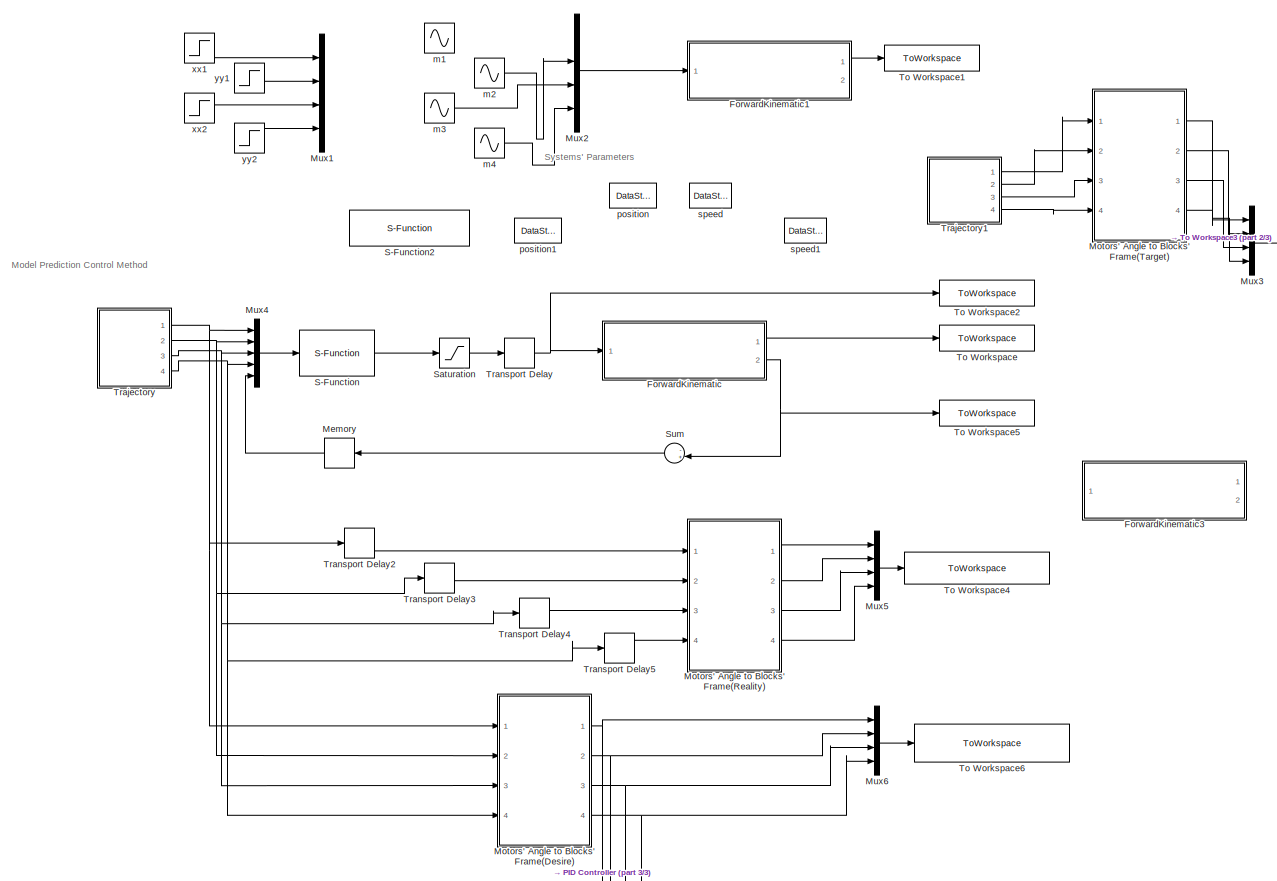
[diagram: root canvas - part 1/3, full width, middle band]
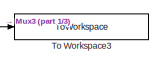
[diagram: root canvas - part 2/3, top right region]
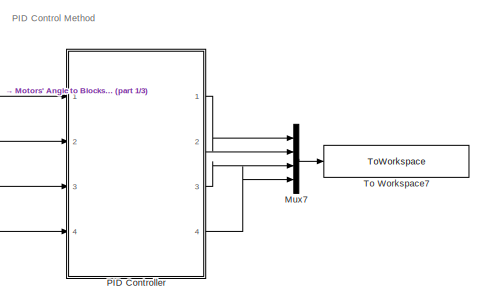
[diagram: root canvas - part 3/3, bottom center region]
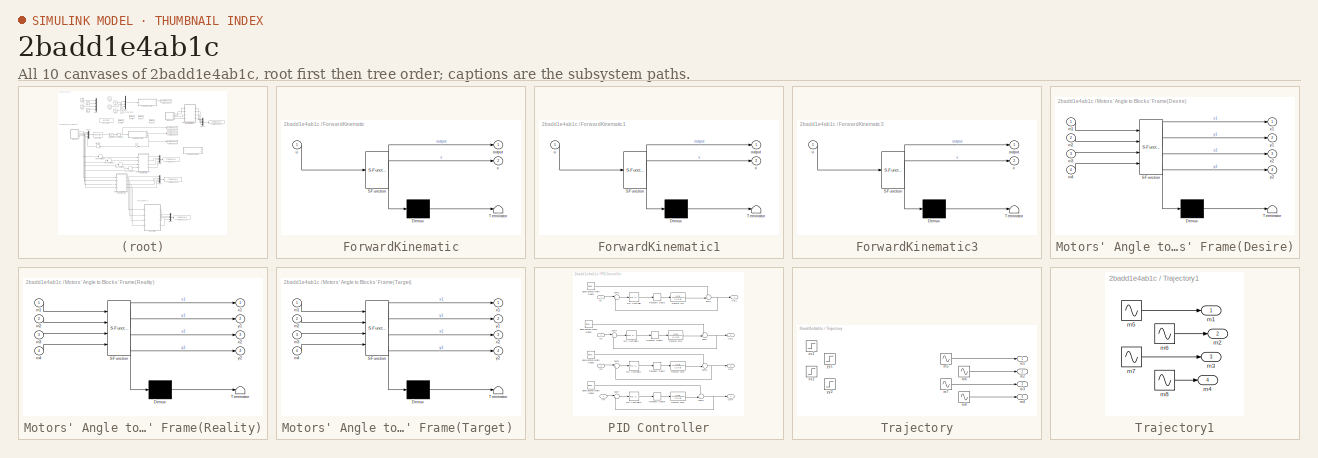
[diagram: thumbnail index - all 10 canvases of the model, root first then tree order]
MODEL slx_2badd1e4ab1c
KIND model
CONFIG AbsTol = auto
CONFIG FixedStep = 0.01
CONFIG MaxStep = auto
CONFIG MinStep = auto
CONFIG RelTol = 1e-3
CONFIG SampleTimeConstraint = Unconstrained
CONFIG Solver = ode4
CONFIG SolverMode = Auto
CONFIG SolverName = ode4
CONFIG StartTime = 0.0
CONFIG StopTime = 10
BLOCK [SubSystem] ForwardKinematic
  ErrorFcn = Stateflow.Translate.translate
  PermitHierarchicalResolution = ExplicitOnly
  Ports = [1, 2]
  RequestExecContextInheritance = off
  SFBlockType = MATLAB Function
  TreatAsAtomicUnit = on
BLOCK [Demux] ForwardKinematic/ Demux 
  Outputs = 1
  Ports = [1, 1]
BLOCK [S-Function] ForwardKinematic/ SFunction 
  EnableBusSupport = on
  FunctionName = sf_sfun
  PortCounts = [1 3]
  Ports = [1, 3]
  Tag = Stateflow S-Function MPC_Kalman 4
BLOCK [Terminator] ForwardKinematic/ Terminator 
BLOCK [Outport] ForwardKinematic/output
  IconDisplay = Port number
BLOCK [Inport] ForwardKinematic/u
  IconDisplay = Port number
BLOCK [Outport] ForwardKinematic/x
  IconDisplay = Port number
  Port = 2
BLOCK [SubSystem] ForwardKinematic1
  Commented = on
  ErrorFcn = Stateflow.Translate.translate
  PermitHierarchicalResolution = ExplicitOnly
  Ports = [1, 2]
  RequestExecContextInheritance = off
  SFBlockType = MATLAB Function
  TreatAsAtomicUnit = on
BLOCK [Demux] ForwardKinematic1/ Demux 
  Outputs = 1
  Ports = [1, 1]
BLOCK [S-Function] ForwardKinematic1/ SFunction 
  EnableBusSupport = on
  FunctionName = sf_sfun
  PortCounts = [1 3]
  Ports = [1, 3]
  Tag = Stateflow S-Function MPC_Kalman 1
BLOCK [Terminator] ForwardKinematic1/ Terminator 
BLOCK [Outport] ForwardKinematic1/output
  IconDisplay = Port number
BLOCK [Inport] ForwardKinematic1/u
  IconDisplay = Port number
BLOCK [Outport] ForwardKinematic1/x
  IconDisplay = Port number
  Port = 2
BLOCK [SubSystem] ForwardKinematic3
  Commented = on
  ErrorFcn = Stateflow.Translate.translate
  PermitHierarchicalResolution = ExplicitOnly
  Ports = [1, 2]
  RequestExecContextInheritance = off
  SFBlockType = MATLAB Function
  TreatAsAtomicUnit = on
BLOCK [Demux] ForwardKinematic3/ Demux 
  Outputs = 1
  Ports = [1, 1]
BLOCK [S-Function] ForwardKinematic3/ SFunction 
  EnableBusSupport = on
  FunctionName = sf_sfun
  PortCounts = [1 3]
  Ports = [1, 3]
  Tag = Stateflow S-Function MPC_Kalman 7
BLOCK [Terminator] ForwardKinematic3/ Terminator 
BLOCK [Outport] ForwardKinematic3/output
  IconDisplay = Port number
BLOCK [Inport] ForwardKinematic3/u
  IconDisplay = Port number
BLOCK [Outport] ForwardKinematic3/x
  IconDisplay = Port number
  Port = 2
BLOCK [Memory] Memory
  X0 = [0,0,0,0,0,0,0,0]
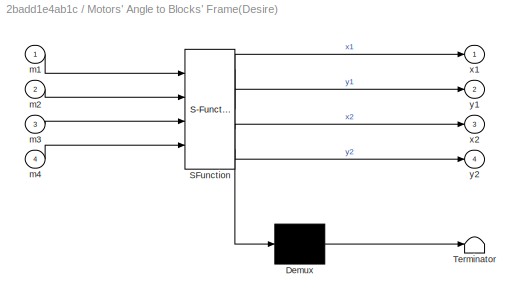
BLOCK [SubSystem] Motors' Angle to Blocks' Frame(Desire)
  ErrorFcn = Stateflow.Translate.translate
  PermitHierarchicalResolution = ExplicitOnly
  Ports = [4, 4]
  RequestExecContextInheritance = off
  SFBlockType = MATLAB Function
  TreatAsAtomicUnit = on
BLOCK [Demux] Motors' Angle to Blocks' Frame(Desire)/ Demux 
  Outputs = 1
  Ports = [1, 1]
BLOCK [S-Function] Motors' Angle to Blocks' Frame(Desire)/ SFunction 
  EnableBusSupport = on
  FunctionName = sf_sfun
  PortCounts = [4 5]
  Ports = [4, 5]
  Tag = Stateflow S-Function MPC_Kalman 3
BLOCK [Terminator] Motors' Angle to Blocks' Frame(Desire)/ Terminator 
BLOCK [Inport] Motors' Angle to Blocks' Frame(Desire)/m1
  IconDisplay = Port number
BLOCK [Inport] Motors' Angle to Blocks' Frame(Desire)/m2
  IconDisplay = Port number
  Port = 2
BLOCK [Inport] Motors' Angle to Blocks' Frame(Desire)/m3
  IconDisplay = Port number
  Port = 3
BLOCK [Inport] Motors' Angle to Blocks' Frame(Desire)/m4
  IconDisplay = Port number
  Port = 4
BLOCK [Outport] Motors' Angle to Blocks' Frame(Desire)/x1
  IconDisplay = Port number
BLOCK [Outport] Motors' Angle to Blocks' Frame(Desire)/x2
  IconDisplay = Port number
  Port = 3
BLOCK [Outport] Motors' Angle to Blocks' Frame(Desire)/y1
  IconDisplay = Port number
  Port = 2
BLOCK [Outport] Motors' Angle to Blocks' Frame(Desire)/y2
  IconDisplay = Port number
  Port = 4
BLOCK [SubSystem] Motors' Angle to Blocks' Frame(Reality)
  ErrorFcn = Stateflow.Translate.translate
  PermitHierarchicalResolution = ExplicitOnly
  Ports = [4, 4]
  RequestExecContextInheritance = off
  SFBlockType = MATLAB Function
  TreatAsAtomicUnit = on
BLOCK [Demux] Motors' Angle to Blocks' Frame(Reality)/ Demux 
  Outputs = 1
  Ports = [1, 1]
BLOCK [S-Function] Motors' Angle to Blocks' Frame(Reality)/ SFunction 
  EnableBusSupport = on
  FunctionName = sf_sfun
  PortCounts = [4 5]
  Ports = [4, 5]
  Tag = Stateflow S-Function MPC_Kalman 2
BLOCK [Terminator] Motors' Angle to Blocks' Frame(Reality)/ Terminator 
BLOCK [Inport] Motors' Angle to Blocks' Frame(Reality)/m1
  IconDisplay = Port number
BLOCK [Inport] Motors' Angle to Blocks' Frame(Reality)/m2
  IconDisplay = Port number
  Port = 2
BLOCK [Inport] Motors' Angle to Blocks' Frame(Reality)/m3
  IconDisplay = Port number
  Port = 3
BLOCK [Inport] Motors' Angle to Blocks' Frame(Reality)/m4
  IconDisplay = Port number
  Port = 4
BLOCK [Outport] Motors' Angle to Blocks' Frame(Reality)/x1
  IconDisplay = Port number
BLOCK [Outport] Motors' Angle to Blocks' Frame(Reality)/x2
  IconDisplay = Port number
  Port = 3
BLOCK [Outport] Motors' Angle to Blocks' Frame(Reality)/y1
  IconDisplay = Port number
  Port = 2
BLOCK [Outport] Motors' Angle to Blocks' Frame(Reality)/y2
  IconDisplay = Port number
  Port = 4
BLOCK [SubSystem] Motors' Angle to Blocks' Frame(Target) 
  Commented = on
  ErrorFcn = Stateflow.Translate.translate
  PermitHierarchicalResolution = ExplicitOnly
  Ports = [4, 4]
  RequestExecContextInheritance = off
  SFBlockType = MATLAB Function
  TreatAsAtomicUnit = on
BLOCK [Demux] Motors' Angle to Blocks' Frame(Target) / Demux 
  Outputs = 1
  Ports = [1, 1]
BLOCK [S-Function] Motors' Angle to Blocks' Frame(Target) / SFunction 
  EnableBusSupport = on
  FunctionName = sf_sfun
  PortCounts = [4 5]
  Ports = [4, 5]
  Tag = Stateflow S-Function MPC_Kalman 5
BLOCK [Terminator] Motors' Angle to Blocks' Frame(Target) / Terminator 
BLOCK [Inport] Motors' Angle to Blocks' Frame(Target) /m1
  IconDisplay = Port number
BLOCK [Inport] Motors' Angle to Blocks' Frame(Target) /m2
  IconDisplay = Port number
  Port = 2
BLOCK [Inport] Motors' Angle to Blocks' Frame(Target) /m3
  IconDisplay = Port number
  Port = 3
BLOCK [Inport] Motors' Angle to Blocks' Frame(Target) /m4
  IconDisplay = Port number
  Port = 4
BLOCK [Outport] Motors' Angle to Blocks' Frame(Target) /x1
  IconDisplay = Port number
BLOCK [Outport] Motors' Angle to Blocks' Frame(Target) /x2
  IconDisplay = Port number
  Port = 3
BLOCK [Outport] Motors' Angle to Blocks' Frame(Target) /y1
  IconDisplay = Port number
  Port = 2
BLOCK [Outport] Motors' Angle to Blocks' Frame(Target) /y2
  IconDisplay = Port number
  Port = 4
BLOCK [Mux] Mux1
  Commented = on
  DisplayOption = bar
  Ports = [4, 1]
BLOCK [Mux] Mux2
  Commented = on
  DisplayOption = bar
  Ports = [4, 1]
BLOCK [Mux] Mux3
  Commented = on
  DisplayOption = bar
  Ports = [4, 1]
BLOCK [Mux] Mux4
  DisplayOption = bar
  Inputs = 5
  Ports = [5, 1]
BLOCK [Mux] Mux5
  DisplayOption = bar
  Ports = [4, 1]
BLOCK [Mux] Mux6
  DisplayOption = bar
  Ports = [4, 1]
BLOCK [Mux] Mux7
  DisplayOption = bar
  Ports = [4, 1]
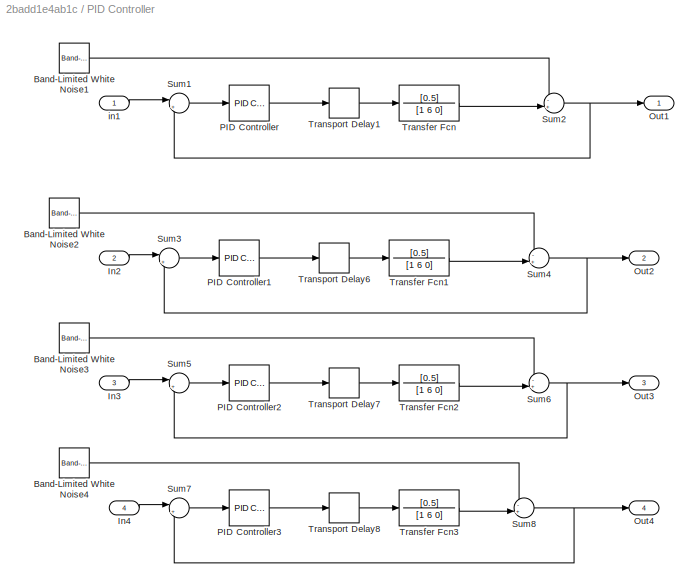
BLOCK [SubSystem] PID Controller
  Ports = [4, 4]
  RequestExecContextInheritance = off
BLOCK [Reference] PID Controller/Band-Limited White Noise1  REF=simulink/Sources/Band-Limited
White Noise
  Cov = [0.00001]
  Ports = [0, 1]
  SourceBlock = simulink/Sources/Band-Limited\nWhite Noise
  SourceType = Band-Limited White Noise.
  Ts = 0.01
  VectorParams1D = on
  seed = [23341]
BLOCK [Reference] PID Controller/Band-Limited White Noise2  REF=simulink/Sources/Band-Limited
White Noise
  Cov = [0.00001]
  Ports = [0, 1]
  SourceBlock = simulink/Sources/Band-Limited\nWhite Noise
  SourceType = Band-Limited White Noise.
  Ts = 0.01
  VectorParams1D = on
  seed = [23341]
BLOCK [Reference] PID Controller/Band-Limited White Noise3  REF=simulink/Sources/Band-Limited
White Noise
  Cov = [0.00001]
  Ports = [0, 1]
  SourceBlock = simulink/Sources/Band-Limited\nWhite Noise
  SourceType = Band-Limited White Noise.
  Ts = 0.01
  VectorParams1D = on
  seed = [23341]
BLOCK [Reference] PID Controller/Band-Limited White Noise4  REF=simulink/Sources/Band-Limited
White Noise
  Cov = [0.00001]
  Ports = [0, 1]
  SourceBlock = simulink/Sources/Band-Limited\nWhite Noise
  SourceType = Band-Limited White Noise.
  Ts = 0.01
  VectorParams1D = on
  seed = [23341]
BLOCK [Inport] PID Controller/In2
  IconDisplay = Port number
  Port = 2
BLOCK [Inport] PID Controller/In3
  IconDisplay = Port number
  Port = 3
BLOCK [Inport] PID Controller/In4
  IconDisplay = Port number
  Port = 4
BLOCK [Outport] PID Controller/Out1
  IconDisplay = Port number
BLOCK [Outport] PID Controller/Out2
  IconDisplay = Port number
  Port = 2
BLOCK [Outport] PID Controller/Out3
  IconDisplay = Port number
  Port = 3
BLOCK [Outport] PID Controller/Out4
  IconDisplay = Port number
  Port = 4
BLOCK [Reference] PID Controller/PID Controller  REF=simulink/Continuous/PID Controller
  AntiWindupMode = none
  Controller = PID
  ControllerParametersSource = internal
  D = 0
  DGainOutDataTypeStr = Inherit: Inherit via internal rule
  DOutDataTypeStr = Inherit: Inherit via internal rule
  DOutMax = []
  DOutMin = []
  DParamDataTypeStr = Inherit: Inherit via internal rule
  DParamMax = []
  DParamMin = []
  DProdOutDataTypeStr = Inherit: Inherit via internal rule
  DifferentiatorICPrevScaledInput = 0
  DifferentiatorOutDataTypeStr = Inherit: Inherit via internal rule
  DifferentiatorOutMax = []
  DifferentiatorOutMin = []
  ExternalReset = none
  FilterContinuousStateAttributes = ''
  FilterMethod = Forward Euler
  FilterOutDataTypeStr = Inherit: Inherit via internal rule
  FilterOutMax = []
  FilterOutMin = []
  FilterRTWStateStorageClass = Auto
  FilterStateMustResolveToSignalObject = off
  Form = Parallel
  I = 2
  IGainOutDataTypeStr = Inherit: Inherit via internal rule
  IOutDataTypeStr = Inherit: Inherit via internal rule
  IOutMax = []
  IOutMin = []
  IParamDataTypeStr = Inherit: Inherit via internal rule
  IParamMax = []
  IParamMin = []
  IProdOutDataTypeStr = Inherit: Inherit via internal rule
  IgnoreLimit = off
  InitialConditionForFilter = 0
  InitialConditionForIntegrator = 0
  InitialConditionSource = internal
  IntegratorContinuousStateAttributes = ''
  IntegratorMethod = Forward Euler
  IntegratorOutDataTypeStr = Inherit: Inherit via internal rule
  IntegratorOutMax = []
  IntegratorOutMin = []
  IntegratorRTWStateStorageClass = Auto
  IntegratorStateMustResolveToSignalObject = off
  Kb = 1
  KbOutDataTypeStr = Inherit: Inherit via internal rule
  KbOutMax = []
  KbOutMin = []
  KbParamDataTypeStr = Inherit: Inherit via internal rule
  KbParamMax = []
  KbParamMin = []
  Kt = 1
  KtOutDataTypeStr = Inherit: Inherit via internal rule
  KtOutMax = []
  KtOutMin = []
  KtParamDataTypeStr = Inherit: Inherit via internal rule
  KtParamMax = []
  KtParamMin = []
  LimitOutput = off
  LinearizeAsGain = on
  LockScale = off
  LowerSaturationLimit = -inf
  N = 100
  NGainOutDataTypeStr = Inherit: Inherit via internal rule
  NOutDataTypeStr = Inherit: Inherit via internal rule
  NOutMax = []
  NOutMin = []
  NParamDataTypeStr = Inherit: Inherit via internal rule
  NParamMax = []
  NParamMin = []
  NProdOutDataTypeStr = Inherit: Inherit via internal rule
  P = 60
  PGainOutDataTypeStr = Inherit: Inherit via internal rule
  POutDataTypeStr = Inherit: Inherit via internal rule
  POutMax = []
  POutMin = []
  PParamDataTypeStr = Inherit: Inherit via internal rule
  PParamMax = []
  PParamMin = []
  PProdOutDataTypeStr = Inherit: Inherit via internal rule
  Ports = [1, 1]
  RndMeth = Floor
  SampleTime = -1
  SaturateOnIntegerOverflow = off
  SaturationOutDataTypeStr = Inherit: Same as input
  SaturationOutMax = []
  SaturationOutMin = []
  SourceBlock = simulink/Continuous/PID Controller
  SourceType = PID 1dof
  SumAccumDataTypeStr = Inherit: Inherit via internal rule
  SumDAccumDataTypeStr = Inherit: Inherit via internal rule
  SumDOutDataTypeStr = Inherit: Inherit via internal rule
  SumDOutMax = []
  SumDOutMin = []
  SumI1AccumDataTypeStr = Inherit: Inherit via internal rule
  SumI1OutDataTypeStr = Inherit: Inherit via internal rule
  SumI1OutMax = []
  SumI1OutMin = []
  SumI2AccumDataTypeStr = Inherit: Inherit via internal rule
  SumI2OutDataTypeStr = Inherit: Inherit via internal rule
  SumI2OutMax = []
  SumI2OutMin = []
  SumI3AccumDataTypeStr = Inherit: Inherit via internal rule
  SumI3OutDataTypeStr = Inherit: Inherit via internal rule
  SumI3OutMax = []
  SumI3OutMin = []
  SumOutDataTypeStr = Inherit: Inherit via internal rule
  SumOutMax = []
  SumOutMin = []
  TimeDomain = Continuous-time
  TrackingMode = off
  UpperSaturationLimit = inf
  UseFilter = on
  ZeroCross = on
BLOCK [Reference] PID Controller/PID Controller1  REF=simulink/Continuous/PID Controller
  AntiWindupMode = none
  Controller = PID
  ControllerParametersSource = internal
  D = 0
  DGainOutDataTypeStr = Inherit: Inherit via internal rule
  DOutDataTypeStr = Inherit: Inherit via internal rule
  DOutMax = []
  DOutMin = []
  DParamDataTypeStr = Inherit: Inherit via internal rule
  DParamMax = []
  DParamMin = []
  DProdOutDataTypeStr = Inherit: Inherit via internal rule
  DifferentiatorICPrevScaledInput = 0
  DifferentiatorOutDataTypeStr = Inherit: Inherit via internal rule
  DifferentiatorOutMax = []
  DifferentiatorOutMin = []
  ExternalReset = none
  FilterContinuousStateAttributes = ''
  FilterMethod = Forward Euler
  FilterOutDataTypeStr = Inherit: Inherit via internal rule
  FilterOutMax = []
  FilterOutMin = []
  FilterRTWStateStorageClass = Auto
  FilterStateMustResolveToSignalObject = off
  Form = Parallel
  I = 2
  IGainOutDataTypeStr = Inherit: Inherit via internal rule
  IOutDataTypeStr = Inherit: Inherit via internal rule
  IOutMax = []
  IOutMin = []
  IParamDataTypeStr = Inherit: Inherit via internal rule
  IParamMax = []
  IParamMin = []
  IProdOutDataTypeStr = Inherit: Inherit via internal rule
  IgnoreLimit = off
  InitialConditionForFilter = 0
  InitialConditionForIntegrator = 0
  InitialConditionSource = internal
  IntegratorContinuousStateAttributes = ''
  IntegratorMethod = Forward Euler
  IntegratorOutDataTypeStr = Inherit: Inherit via internal rule
  IntegratorOutMax = []
  IntegratorOutMin = []
  IntegratorRTWStateStorageClass = Auto
  IntegratorStateMustResolveToSignalObject = off
  Kb = 1
  KbOutDataTypeStr = Inherit: Inherit via internal rule
  KbOutMax = []
  KbOutMin = []
  KbParamDataTypeStr = Inherit: Inherit via internal rule
  KbParamMax = []
  KbParamMin = []
  Kt = 1
  KtOutDataTypeStr = Inherit: Inherit via internal rule
  KtOutMax = []
  KtOutMin = []
  KtParamDataTypeStr = Inherit: Inherit via internal rule
  KtParamMax = []
  KtParamMin = []
  LimitOutput = off
  LinearizeAsGain = on
  LockScale = off
  LowerSaturationLimit = -inf
  N = 100
  NGainOutDataTypeStr = Inherit: Inherit via internal rule
  NOutDataTypeStr = Inherit: Inherit via internal rule
  NOutMax = []
  NOutMin = []
  NParamDataTypeStr = Inherit: Inherit via internal rule
  NParamMax = []
  NParamMin = []
  NProdOutDataTypeStr = Inherit: Inherit via internal rule
  P = 60
  PGainOutDataTypeStr = Inherit: Inherit via internal rule
  POutDataTypeStr = Inherit: Inherit via internal rule
  POutMax = []
  POutMin = []
  PParamDataTypeStr = Inherit: Inherit via internal rule
  PParamMax = []
  PParamMin = []
  PProdOutDataTypeStr = Inherit: Inherit via internal rule
  Ports = [1, 1]
  RndMeth = Floor
  SampleTime = -1
  SaturateOnIntegerOverflow = off
  SaturationOutDataTypeStr = Inherit: Same as input
  SaturationOutMax = []
  SaturationOutMin = []
  SourceBlock = simulink/Continuous/PID Controller
  SourceType = PID 1dof
  SumAccumDataTypeStr = Inherit: Inherit via internal rule
  SumDAccumDataTypeStr = Inherit: Inherit via internal rule
  SumDOutDataTypeStr = Inherit: Inherit via internal rule
  SumDOutMax = []
  SumDOutMin = []
  SumI1AccumDataTypeStr = Inherit: Inherit via internal rule
  SumI1OutDataTypeStr = Inherit: Inherit via internal rule
  SumI1OutMax = []
  SumI1OutMin = []
  SumI2AccumDataTypeStr = Inherit: Inherit via internal rule
  SumI2OutDataTypeStr = Inherit: Inherit via internal rule
  SumI2OutMax = []
  SumI2OutMin = []
  SumI3AccumDataTypeStr = Inherit: Inherit via internal rule
  SumI3OutDataTypeStr = Inherit: Inherit via internal rule
  SumI3OutMax = []
  SumI3OutMin = []
  SumOutDataTypeStr = Inherit: Inherit via internal rule
  SumOutMax = []
  SumOutMin = []
  TimeDomain = Continuous-time
  TrackingMode = off
  UpperSaturationLimit = inf
  UseFilter = on
  ZeroCross = on
BLOCK [Reference] PID Controller/PID Controller2  REF=simulink/Continuous/PID Controller
  AntiWindupMode = none
  Controller = PID
  ControllerParametersSource = internal
  D = 0
  DGainOutDataTypeStr = Inherit: Inherit via internal rule
  DOutDataTypeStr = Inherit: Inherit via internal rule
  DOutMax = []
  DOutMin = []
  DParamDataTypeStr = Inherit: Inherit via internal rule
  DParamMax = []
  DParamMin = []
  DProdOutDataTypeStr = Inherit: Inherit via internal rule
  DifferentiatorICPrevScaledInput = 0
  DifferentiatorOutDataTypeStr = Inherit: Inherit via internal rule
  DifferentiatorOutMax = []
  DifferentiatorOutMin = []
  ExternalReset = none
  FilterContinuousStateAttributes = ''
  FilterMethod = Forward Euler
  FilterOutDataTypeStr = Inherit: Inherit via internal rule
  FilterOutMax = []
  FilterOutMin = []
  FilterRTWStateStorageClass = Auto
  FilterStateMustResolveToSignalObject = off
  Form = Parallel
  I = 2
  IGainOutDataTypeStr = Inherit: Inherit via internal rule
  IOutDataTypeStr = Inherit: Inherit via internal rule
  IOutMax = []
  IOutMin = []
  IParamDataTypeStr = Inherit: Inherit via internal rule
  IParamMax = []
  IParamMin = []
  IProdOutDataTypeStr = Inherit: Inherit via internal rule
  IgnoreLimit = off
  InitialConditionForFilter = 0
  InitialConditionForIntegrator = 0
  InitialConditionSource = internal
  IntegratorContinuousStateAttributes = ''
  IntegratorMethod = Forward Euler
  IntegratorOutDataTypeStr = Inherit: Inherit via internal rule
  IntegratorOutMax = []
  IntegratorOutMin = []
  IntegratorRTWStateStorageClass = Auto
  IntegratorStateMustResolveToSignalObject = off
  Kb = 1
  KbOutDataTypeStr = Inherit: Inherit via internal rule
  KbOutMax = []
  KbOutMin = []
  KbParamDataTypeStr = Inherit: Inherit via internal rule
  KbParamMax = []
  KbParamMin = []
  Kt = 1
  KtOutDataTypeStr = Inherit: Inherit via internal rule
  KtOutMax = []
  KtOutMin = []
  KtParamDataTypeStr = Inherit: Inherit via internal rule
  KtParamMax = []
  KtParamMin = []
  LimitOutput = off
  LinearizeAsGain = on
  LockScale = off
  LowerSaturationLimit = -inf
  N = 100
  NGainOutDataTypeStr = Inherit: Inherit via internal rule
  NOutDataTypeStr = Inherit: Inherit via internal rule
  NOutMax = []
  NOutMin = []
  NParamDataTypeStr = Inherit: Inherit via internal rule
  NParamMax = []
  NParamMin = []
  NProdOutDataTypeStr = Inherit: Inherit via internal rule
  P = 60
  PGainOutDataTypeStr = Inherit: Inherit via internal rule
  POutDataTypeStr = Inherit: Inherit via internal rule
  POutMax = []
  POutMin = []
  PParamDataTypeStr = Inherit: Inherit via internal rule
  PParamMax = []
  PParamMin = []
  PProdOutDataTypeStr = Inherit: Inherit via internal rule
  Ports = [1, 1]
  RndMeth = Floor
  SampleTime = -1
  SaturateOnIntegerOverflow = off
  SaturationOutDataTypeStr = Inherit: Same as input
  SaturationOutMax = []
  SaturationOutMin = []
  SourceBlock = simulink/Continuous/PID Controller
  SourceType = PID 1dof
  SumAccumDataTypeStr = Inherit: Inherit via internal rule
  SumDAccumDataTypeStr = Inherit: Inherit via internal rule
  SumDOutDataTypeStr = Inherit: Inherit via internal rule
  SumDOutMax = []
  SumDOutMin = []
  SumI1AccumDataTypeStr = Inherit: Inherit via internal rule
  SumI1OutDataTypeStr = Inherit: Inherit via internal rule
  SumI1OutMax = []
  SumI1OutMin = []
  SumI2AccumDataTypeStr = Inherit: Inherit via internal rule
  SumI2OutDataTypeStr = Inherit: Inherit via internal rule
  SumI2OutMax = []
  SumI2OutMin = []
  SumI3AccumDataTypeStr = Inherit: Inherit via internal rule
  SumI3OutDataTypeStr = Inherit: Inherit via internal rule
  SumI3OutMax = []
  SumI3OutMin = []
  SumOutDataTypeStr = Inherit: Inherit via internal rule
  SumOutMax = []
  SumOutMin = []
  TimeDomain = Continuous-time
  TrackingMode = off
  UpperSaturationLimit = inf
  UseFilter = on
  ZeroCross = on
BLOCK [Reference] PID Controller/PID Controller3  REF=simulink/Continuous/PID Controller
  AntiWindupMode = none
  Controller = PID
  ControllerParametersSource = internal
  D = 0
  DGainOutDataTypeStr = Inherit: Inherit via internal rule
  DOutDataTypeStr = Inherit: Inherit via internal rule
  DOutMax = []
  DOutMin = []
  DParamDataTypeStr = Inherit: Inherit via internal rule
  DParamMax = []
  DParamMin = []
  DProdOutDataTypeStr = Inherit: Inherit via internal rule
  DifferentiatorICPrevScaledInput = 0
  DifferentiatorOutDataTypeStr = Inherit: Inherit via internal rule
  DifferentiatorOutMax = []
  DifferentiatorOutMin = []
  ExternalReset = none
  FilterContinuousStateAttributes = ''
  FilterMethod = Forward Euler
  FilterOutDataTypeStr = Inherit: Inherit via internal rule
  FilterOutMax = []
  FilterOutMin = []
  FilterRTWStateStorageClass = Auto
  FilterStateMustResolveToSignalObject = off
  Form = Parallel
  I = 2
  IGainOutDataTypeStr = Inherit: Inherit via internal rule
  IOutDataTypeStr = Inherit: Inherit via internal rule
  IOutMax = []
  IOutMin = []
  IParamDataTypeStr = Inherit: Inherit via internal rule
  IParamMax = []
  IParamMin = []
  IProdOutDataTypeStr = Inherit: Inherit via internal rule
  IgnoreLimit = off
  InitialConditionForFilter = 0
  InitialConditionForIntegrator = 0
  InitialConditionSource = internal
  IntegratorContinuousStateAttributes = ''
  IntegratorMethod = Forward Euler
  IntegratorOutDataTypeStr = Inherit: Inherit via internal rule
  IntegratorOutMax = []
  IntegratorOutMin = []
  IntegratorRTWStateStorageClass = Auto
  IntegratorStateMustResolveToSignalObject = off
  Kb = 1
  KbOutDataTypeStr = Inherit: Inherit via internal rule
  KbOutMax = []
  KbOutMin = []
  KbParamDataTypeStr = Inherit: Inherit via internal rule
  KbParamMax = []
  KbParamMin = []
  Kt = 1
  KtOutDataTypeStr = Inherit: Inherit via internal rule
  KtOutMax = []
  KtOutMin = []
  KtParamDataTypeStr = Inherit: Inherit via internal rule
  KtParamMax = []
  KtParamMin = []
  LimitOutput = off
  LinearizeAsGain = on
  LockScale = off
  LowerSaturationLimit = -inf
  N = 100
  NGainOutDataTypeStr = Inherit: Inherit via internal rule
  NOutDataTypeStr = Inherit: Inherit via internal rule
  NOutMax = []
  NOutMin = []
  NParamDataTypeStr = Inherit: Inherit via internal rule
  NParamMax = []
  NParamMin = []
  NProdOutDataTypeStr = Inherit: Inherit via internal rule
  P = 60
  PGainOutDataTypeStr = Inherit: Inherit via internal rule
  POutDataTypeStr = Inherit: Inherit via internal rule
  POutMax = []
  POutMin = []
  PParamDataTypeStr = Inherit: Inherit via internal rule
  PParamMax = []
  PParamMin = []
  PProdOutDataTypeStr = Inherit: Inherit via internal rule
  Ports = [1, 1]
  RndMeth = Floor
  SampleTime = -1
  SaturateOnIntegerOverflow = off
  SaturationOutDataTypeStr = Inherit: Same as input
  SaturationOutMax = []
  SaturationOutMin = []
  SourceBlock = simulink/Continuous/PID Controller
  SourceType = PID 1dof
  SumAccumDataTypeStr = Inherit: Inherit via internal rule
  SumDAccumDataTypeStr = Inherit: Inherit via internal rule
  SumDOutDataTypeStr = Inherit: Inherit via internal rule
  SumDOutMax = []
  SumDOutMin = []
  SumI1AccumDataTypeStr = Inherit: Inherit via internal rule
  SumI1OutDataTypeStr = Inherit: Inherit via internal rule
  SumI1OutMax = []
  SumI1OutMin = []
  SumI2AccumDataTypeStr = Inherit: Inherit via internal rule
  SumI2OutDataTypeStr = Inherit: Inherit via internal rule
  SumI2OutMax = []
  SumI2OutMin = []
  SumI3AccumDataTypeStr = Inherit: Inherit via internal rule
  SumI3OutDataTypeStr = Inherit: Inherit via internal rule
  SumI3OutMax = []
  SumI3OutMin = []
  SumOutDataTypeStr = Inherit: Inherit via internal rule
  SumOutMax = []
  SumOutMin = []
  TimeDomain = Continuous-time
  TrackingMode = off
  UpperSaturationLimit = inf
  UseFilter = on
  ZeroCross = on
BLOCK [Sum] PID Controller/Sum1
  IconShape = round
  InputSameDT = off
  Inputs = |+-
  OutDataTypeStr = Inherit: Inherit via internal rule
  Ports = [2, 1]
  SaturateOnIntegerOverflow = off
BLOCK [Sum] PID Controller/Sum2
  IconShape = round
  InputSameDT = off
  Inputs = -+|
  OutDataTypeStr = Inherit: Inherit via internal rule
  Ports = [2, 1]
  SaturateOnIntegerOverflow = off
BLOCK [Sum] PID Controller/Sum3
  IconShape = round
  InputSameDT = off
  Inputs = |+-
  OutDataTypeStr = Inherit: Inherit via internal rule
  Ports = [2, 1]
  SaturateOnIntegerOverflow = off
BLOCK [Sum] PID Controller/Sum4
  IconShape = round
  InputSameDT = off
  Inputs = -+|
  OutDataTypeStr = Inherit: Inherit via internal rule
  Ports = [2, 1]
  SaturateOnIntegerOverflow = off
BLOCK [Sum] PID Controller/Sum5
  IconShape = round
  InputSameDT = off
  Inputs = |+-
  OutDataTypeStr = Inherit: Inherit via internal rule
  Ports = [2, 1]
  SaturateOnIntegerOverflow = off
BLOCK [Sum] PID Controller/Sum6
  IconShape = round
  InputSameDT = off
  Inputs = -+|
  OutDataTypeStr = Inherit: Inherit via internal rule
  Ports = [2, 1]
  SaturateOnIntegerOverflow = off
BLOCK [Sum] PID Controller/Sum7
  IconShape = round
  InputSameDT = off
  Inputs = |+-
  OutDataTypeStr = Inherit: Inherit via internal rule
  Ports = [2, 1]
  SaturateOnIntegerOverflow = off
BLOCK [Sum] PID Controller/Sum8
  IconShape = round
  InputSameDT = off
  Inputs = -+|
  OutDataTypeStr = Inherit: Inherit via internal rule
  Ports = [2, 1]
  SaturateOnIntegerOverflow = off
BLOCK [TransferFcn] PID Controller/Transfer Fcn
  Denominator = [1 6 0]
  Numerator = [0.5]
BLOCK [TransferFcn] PID Controller/Transfer Fcn1
  Denominator = [1 6 0]
  Numerator = [0.5]
BLOCK [TransferFcn] PID Controller/Transfer Fcn2
  Denominator = [1 6 0]
  Numerator = [0.5]
BLOCK [TransferFcn] PID Controller/Transfer Fcn3
  Denominator = [1 6 0]
  Numerator = [0.5]
BLOCK [TransportDelay] PID Controller/Transport Delay1
  DelayTime = delay_time
  Ports = [1, 1]
BLOCK [TransportDelay] PID Controller/Transport Delay6
  DelayTime = delay_time
  Ports = [1, 1]
BLOCK [TransportDelay] PID Controller/Transport Delay7
  DelayTime = delay_time
  Ports = [1, 1]
BLOCK [TransportDelay] PID Controller/Transport Delay8
  DelayTime = delay_time
  Ports = [1, 1]
BLOCK [Inport] PID Controller/in1
  IconDisplay = Port number
BLOCK [S-Function] S-Function
  FunctionName = KFMPC
  Ports = [1, 1]
BLOCK [S-Function] S-Function2
  FunctionName = MPC_PredictionModel
  Ports = [1, 1]
BLOCK [Saturate] Saturation
  InputPortMap = u0
  LowerLimit = -1
  Ports = [1, 1]
  UpperLimit = 1
BLOCK [Sum] Sum
  IconShape = round
  InputSameDT = off
  Inputs = -+|
  OutDataTypeStr = Inherit: Inherit via internal rule
  Ports = [2, 1]
  SaturateOnIntegerOverflow = off
BLOCK [ToWorkspace] To Workspace
  FixptAsFi = on
  MaxDataPoints = inf
  Ports = [1]
  SampleTime = -1
  Save2DSignal = 3-D array (concatenate along third dimension)
  SaveFormat = Timeseries
  VariableName = BlocksMovement
BLOCK [ToWorkspace] To Workspace1
  Commented = on
  FixptAsFi = on
  MaxDataPoints = inf
  Ports = [1]
  SampleTime = -1
  Save2DSignal = 3-D array (concatenate along third dimension)
  SaveFormat = Timeseries
  VariableName = BlocksMovement1
BLOCK [ToWorkspace] To Workspace2
  FixptAsFi = on
  MaxDataPoints = inf
  Ports = [1]
  SampleTime = -1
  Save2DSignal = 3-D array (concatenate along third dimension)
  SaveFormat = Timeseries
  VariableName = ControlValue
BLOCK [ToWorkspace] To Workspace3
  Commented = on
  FixptAsFi = on
  MaxDataPoints = inf
  Ports = [1]
  SampleTime = -1
  Save2DSignal = 3-D array (concatenate along third dimension)
  SaveFormat = Timeseries
  VariableName = BlockMovementTarget
BLOCK [ToWorkspace] To Workspace4
  FixptAsFi = on
  MaxDataPoints = inf
  Ports = [1]
  SampleTime = -1
  Save2DSignal = 3-D array (concatenate along third dimension)
  SaveFormat = Timeseries
  VariableName = BlocksMovementReality
BLOCK [ToWorkspace] To Workspace5
  FixptAsFi = on
  MaxDataPoints = inf
  Ports = [1]
  SampleTime = -1
  Save2DSignal = 3-D array (concatenate along third dimension)
  SaveFormat = Timeseries
  VariableName = StateObserver
BLOCK [ToWorkspace] To Workspace6
  FixptAsFi = on
  MaxDataPoints = inf
  Ports = [1]
  SampleTime = -1
  Save2DSignal = 3-D array (concatenate along third dimension)
  SaveFormat = Timeseries
  VariableName = BlocksMovementDesire
BLOCK [ToWorkspace] To Workspace7
  FixptAsFi = on
  MaxDataPoints = inf
  Ports = [1]
  SampleTime = -1
  Save2DSignal = 3-D array (concatenate along third dimension)
  SaveFormat = Timeseries
  VariableName = BlocksMovementPID
BLOCK [SubSystem] Trajectory
  Ports = [0, 4]
  RequestExecContextInheritance = off
BLOCK [Outport] Trajectory/m1
  IconDisplay = Port number
BLOCK [Outport] Trajectory/m2
  IconDisplay = Port number
  Port = 2
BLOCK [Outport] Trajectory/m3
  IconDisplay = Port number
  Port = 3
BLOCK [Outport] Trajectory/m4
  IconDisplay = Port number
  Port = 4
BLOCK [Sin] Trajectory/m5
  Ports = [0, 1]
  SampleTime = 0
BLOCK [Sin] Trajectory/m6
  Frequency = 2
  Ports = [0, 1]
  SampleTime = 0
BLOCK [Sin] Trajectory/m7
  Phase = 3.14
  Ports = [0, 1]
  SampleTime = 0
BLOCK [Sin] Trajectory/m8
  Frequency = 2
  Phase = 3.14
  Ports = [0, 1]
  SampleTime = 0
BLOCK [Step] Trajectory/xx1
BLOCK [Step] Trajectory/xx2
  After = -1
BLOCK [Step] Trajectory/yy1
BLOCK [Step] Trajectory/yy2
  After = -1
BLOCK [SubSystem] Trajectory1
  Commented = on
  Ports = [0, 4]
  RequestExecContextInheritance = off
BLOCK [Outport] Trajectory1/m1
  IconDisplay = Port number
BLOCK [Outport] Trajectory1/m2
  IconDisplay = Port number
  Port = 2
BLOCK [Outport] Trajectory1/m3
  IconDisplay = Port number
  Port = 3
BLOCK [Outport] Trajectory1/m4
  IconDisplay = Port number
  Port = 4
BLOCK [Sin] Trajectory1/m5
  Ports = [0, 1]
  SampleTime = 0
BLOCK [Sin] Trajectory1/m6
  Frequency = 2
  Ports = [0, 1]
  SampleTime = 0
BLOCK [Sin] Trajectory1/m7
  Phase = 3.14
  Ports = [0, 1]
  SampleTime = 0
BLOCK [Sin] Trajectory1/m8
  Frequency = 2
  Phase = 3.14
  Ports = [0, 1]
  SampleTime = 0
BLOCK [TransportDelay] Transport Delay
  DelayTime = delay_time
  Ports = [1, 1]
BLOCK [TransportDelay] Transport Delay2
  DelayTime = delay_time
  Ports = [1, 1]
BLOCK [TransportDelay] Transport Delay3
  DelayTime = delay_time
  Ports = [1, 1]
BLOCK [TransportDelay] Transport Delay4
  DelayTime = delay_time
  Ports = [1, 1]
BLOCK [TransportDelay] Transport Delay5
  DelayTime = delay_time
  Ports = [1, 1]
BLOCK [Sin] m1
  Commented = on
  Ports = [0, 1]
  SampleTime = 0
BLOCK [Sin] m2
  Commented = on
  Frequency = 2
  Ports = [0, 1]
  SampleTime = 0
BLOCK [Sin] m3
  Commented = on
  Phase = 3.14
  Ports = [0, 1]
  SampleTime = 0
BLOCK [Sin] m4
  Frequency = 2
  Phase = 3.14
  Ports = [0, 1]
  SampleTime = 0
BLOCK [DataStoreMemory] position
  DataStoreName = block_a
  InitialValue = [0,0,0,0]
  OutDataTypeStr = double
  ReadBeforeWriteMsg = warning
  SignalType = real
  WriteAfterReadMsg = warning
  WriteAfterWriteMsg = warning
BLOCK [DataStoreMemory] position1
  DataStoreName = y_1
  InitialValue = [0,0,0,0]
  OutDataTypeStr = double
  ReadBeforeWriteMsg = warning
  SignalType = real
  WriteAfterReadMsg = warning
  WriteAfterWriteMsg = warning
BLOCK [DataStoreMemory] speed
  DataStoreName = block_v
  InitialValue = [0,0,0,0]
  OutDataTypeStr = double
  ReadBeforeWriteMsg = warning
  SignalType = real
  WriteAfterReadMsg = warning
  WriteAfterWriteMsg = warning
BLOCK [DataStoreMemory] speed1
  DataStoreName = y_2
  InitialValue = [0,0,0,0]
  OutDataTypeStr = double
  ReadBeforeWriteMsg = warning
  SignalType = real
  WriteAfterReadMsg = warning
  WriteAfterWriteMsg = warning
BLOCK [Step] xx1
  After = -2
  Before = -2
  Commented = on
  Time = 0
BLOCK [Step] xx2
  After = 0.5
  Before = 0.5
  Commented = on
  Time = 0
BLOCK [Step] yy1
  After = -2
  Before = -2
  Commented = on
  Time = 0
BLOCK [Step] yy2
  Before = 1
  Time = 5
ANNOTATION (root): Model Prediction Control Method
ANNOTATION (root): PID Control Method
ANNOTATION (root): Systems' Parameters
LINE ForwardKinematic1:1 -> To Workspace1:1
LINE ForwardKinematic:1 -> To Workspace:1
NET ForwardKinematic:2 -> Sum:2, To Workspace5:1
LINE Memory:1 -> Mux4:5
NET Motors' Angle to Blocks' Frame(Desire):1 -> Mux6:1, PID Controller:1
NET Motors' Angle to Blocks' Frame(Desire):2 -> Mux6:2, PID Controller:2
NET Motors' Angle to Blocks' Frame(Desire):3 -> Mux6:3, PID Controller:3
NET Motors' Angle to Blocks' Frame(Desire):4 -> Mux6:4, PID Controller:4
LINE Motors' Angle to Blocks' Frame(Reality):1 -> Mux5:1
LINE Motors' Angle to Blocks' Frame(Reality):2 -> Mux5:2
LINE Motors' Angle to Blocks' Frame(Reality):3 -> Mux5:3
LINE Motors' Angle to Blocks' Frame(Reality):4 -> Mux5:4
LINE Motors' Angle to Blocks' Frame(Target) :1 -> Mux3:1
LINE Motors' Angle to Blocks' Frame(Target) :2 -> Mux3:2
LINE Motors' Angle to Blocks' Frame(Target) :3 -> Mux3:3
LINE Motors' Angle to Blocks' Frame(Target) :4 -> Mux3:4
LINE Mux2:1 -> ForwardKinematic1:1
LINE Mux3:1 -> To Workspace3:1
LINE Mux4:1 -> S-Function:1
LINE Mux5:1 -> To Workspace4:1
LINE Mux6:1 -> To Workspace6:1
LINE Mux7:1 -> To Workspace7:1
LINE PID Controller/Band-Limited White Noise1:1 -> PID Controller/Sum2:1
LINE PID Controller/Band-Limited White Noise2:1 -> PID Controller/Sum4:1
LINE PID Controller/Band-Limited White Noise3:1 -> PID Controller/Sum6:1
LINE PID Controller/Band-Limited White Noise4:1 -> PID Controller/Sum8:1
LINE PID Controller/In2:1 -> PID Controller/Sum3:1
LINE PID Controller/In3:1 -> PID Controller/Sum5:1
LINE PID Controller/In4:1 -> PID Controller/Sum7:1
LINE PID Controller/PID Controller1:1 -> PID Controller/Transport Delay6:1
LINE PID Controller/PID Controller2:1 -> PID Controller/Transport Delay7:1
LINE PID Controller/PID Controller3:1 -> PID Controller/Transport Delay8:1
LINE PID Controller/PID Controller:1 -> PID Controller/Transport Delay1:1
LINE PID Controller/Sum1:1 -> PID Controller/PID Controller:1
NET PID Controller/Sum2:1 -> PID Controller/Out1:1, PID Controller/Sum1:2
LINE PID Controller/Sum3:1 -> PID Controller/PID Controller1:1
NET PID Controller/Sum4:1 -> PID Controller/Out2:1, PID Controller/Sum3:2
LINE PID Controller/Sum5:1 -> PID Controller/PID Controller2:1
NET PID Controller/Sum6:1 -> PID Controller/Out3:1, PID Controller/Sum5:2
LINE PID Controller/Sum7:1 -> PID Controller/PID Controller3:1
NET PID Controller/Sum8:1 -> PID Controller/Out4:1, PID Controller/Sum7:2
LINE PID Controller/Transfer Fcn1:1 -> PID Controller/Sum4:2
LINE PID Controller/Transfer Fcn2:1 -> PID Controller/Sum6:2
LINE PID Controller/Transfer Fcn3:1 -> PID Controller/Sum8:2
LINE PID Controller/Transfer Fcn:1 -> PID Controller/Sum2:2
LINE PID Controller/Transport Delay1:1 -> PID Controller/Transfer Fcn:1
LINE PID Controller/Transport Delay6:1 -> PID Controller/Transfer Fcn1:1
LINE PID Controller/Transport Delay7:1 -> PID Controller/Transfer Fcn2:1
LINE PID Controller/Transport Delay8:1 -> PID Controller/Transfer Fcn3:1
LINE PID Controller/in1:1 -> PID Controller/Sum1:1
LINE PID Controller:1 -> Mux7:1
LINE PID Controller:2 -> Mux7:2
LINE PID Controller:3 -> Mux7:3
LINE PID Controller:4 -> Mux7:4
LINE S-Function:1 -> Saturation:1
LINE Saturation:1 -> Transport Delay:1
LINE Sum:1 -> Memory:1
LINE Trajectory/m5:1 -> Trajectory/m1:1
LINE Trajectory/m6:1 -> Trajectory/m2:1
LINE Trajectory/m7:1 -> Trajectory/m3:1
LINE Trajectory/m8:1 -> Trajectory/m4:1
LINE Trajectory1/m5:1 -> Trajectory1/m1:1
LINE Trajectory1/m6:1 -> Trajectory1/m2:1
LINE Trajectory1/m7:1 -> Trajectory1/m3:1
LINE Trajectory1/m8:1 -> Trajectory1/m4:1
LINE Trajectory1:1 -> Motors' Angle to Blocks' Frame(Target) :1
LINE Trajectory1:2 -> Motors' Angle to Blocks' Frame(Target) :2
LINE Trajectory1:3 -> Motors' Angle to Blocks' Frame(Target) :3
LINE Trajectory1:4 -> Motors' Angle to Blocks' Frame(Target) :4
NET Trajectory:1 -> Motors' Angle to Blocks' Frame(Desire):1, Mux4:1, Transport Delay2:1
NET Trajectory:2 -> Motors' Angle to Blocks' Frame(Desire):2, Mux4:2, Transport Delay3:1
NET Trajectory:3 -> Motors' Angle to Blocks' Frame(Desire):3, Mux4:3, Transport Delay4:1
NET Trajectory:4 -> Motors' Angle to Blocks' Frame(Desire):4, Mux4:4, Transport Delay5:1
LINE Transport Delay2:1 -> Motors' Angle to Blocks' Frame(Reality):1
LINE Transport Delay3:1 -> Motors' Angle to Blocks' Frame(Reality):2
LINE Transport Delay4:1 -> Motors' Angle to Blocks' Frame(Reality):3
LINE Transport Delay5:1 -> Motors' Angle to Blocks' Frame(Reality):4
NET Transport Delay:1 -> ForwardKinematic:1, To Workspace2:1
LINE m2:1 -> Mux2:2
LINE m3:1 -> Mux2:3
LINE m4:1 -> Mux2:4
LINE xx1:1 -> Mux1:1
LINE xx2:1 -> Mux1:3
LINE yy1:1 -> Mux1:2
LINE yy2:1 -> Mux1:4
note: NET lines group one-source signal fan-out (src -> all destinations, sorted); 1:1 wires keep LINE
CHART ForwardKinematic1 states=1 transitions=1
  STATE_LABEL 'eML_blk_kernel()'
  STATE_LABEL 'SCRIPT:\nfunction [output,x] = RobotForwardKinematic(u) %输入1x4\nglobal block_v block_a \n%block_v：上一时刻的角速度\n%block_a：上一时刻的角度\n%% 单电机状态方程\nA = [0 1 0 0 0 0 0 0;\n     0.005 0.045 0 0 0 0 0 0;\n     0 0 0 1 0 0 0 0;\n     0 0 0.0185 0.0251 0 0 0 0;\n     0 0 0 0 0 1 0 0;\n     0 0 0 0 0.0065 -0.0258 0 0;\n     0 0 0 0 0 0 0 1;\n     0 0 0 0 0 0 -0.023 0.0084]; \nb = [0 0 0 0;\n     1.8899 0 0 0;\n     0 0 0 0;\n    ...<+396ch>'
CHART Motors' Angle to Blocks' Frame(Reality) states=1 transitions=1
  STATE_LABEL 'eML_blk_kernel()'
  STATE_LABEL 'SCRIPT:\nfunction [x1,y1,x2,y2] = Signal(m1,m2,m3,m4)\n\n\n\n%m1,m2,m3,m4为四个电机的当前时刻的角度值\n\n%最远距离\nD = 1.8;\n% %螺距\n% n = 0.02;\n% %最大圈数\n% ratio = D / n;\nv=sqrt(0.01)*randn(4,1);\nx1 = m1 * D + v(1);\ny1 = m2 * D + v(2);\nx2 = m3 * D + v(3);\ny2 = m4 * D + v(4);\n\nif x1>=2\n    x1=2;\nelse\n    if x1<=-2\n        x1=-2;\n    end\nend\nif x2>=2\n    x2=2;\nelse\n    if x2<=-2\n        x2=-2;\n    end\nend\nif y1>=2\n    y1=2;\nels...<+114ch>'
CHART Motors' Angle to Blocks' Frame(Desire) states=1 transitions=1
  STATE_LABEL 'eML_blk_kernel()'
  STATE_LABEL 'SCRIPT:\nfunction [x1,y1,x2,y2] = Signal(m1,m2,m3,m4)\n\n\n\n%m1,m2,m3,m4为四个电机的当前时刻的角度值\n\n%最远距离\nD = 1.85;\n% %螺距\n% n = 0.02;\n% %最大圈数\n% ratio = D / n;\nv=sqrt(0.01)*randn(4,1);\nx1 = m1 * D;\ny1 = m2 * D;\nx2 = m3 * D;\ny2 = m4 * D;\n\nif x1>=2\n    x1=2;\nelse\n    if x1<=-2\n        x1=-2;\n    end\nend\nif x2>=2\n    x2=2;\nelse\n    if x2<=-2\n        x2=-2;\n    end\nend\nif y1>=2\n    y1=2;\nelse\n    if y1<=-2\n        y1=...<+87ch>'
CHART ForwardKinematic states=1 transitions=1
  STATE_LABEL 'eML_blk_kernel()'
  STATE_LABEL 'SCRIPT:\nfunction [output,x] = RobotForwardKinematic(u) %输入1x4\nglobal y_1 y_2\n%block_v：上一时刻的角速度\n%block_a：上一时刻的角度\n%% 单电机状态方程\nA = [0 1 0 0 0 0 0 0;\n     0.005 0.045 0 0 0 0 0 0;\n     0 0 0 1 0 0 0 0;\n     0 0 0.0185 0.0251 0 0 0 0;\n     0 0 0 0 0 1 0 0;\n     0 0 0 0 0.0065 -0.0258 0 0;\n     0 0 0 0 0 0 0 1;\n     0 0 0 0 0 0 -0.023 0.0084]; %8x8\nb = [0 0 0 0;\n     1.8899 0 0 0;\n     0 0 0 0;\n     0 1....<+1181ch>'
CHART Motors' Angle to Blocks' Frame(Target)  states=1 transitions=1
  STATE_LABEL 'eML_blk_kernel()'
  STATE_LABEL 'SCRIPT:\nfunction [x1,y1,x2,y2] = Signal(m1,m2,m3,m4)\n\n\n\n%m1,m2,m3,m4为四个电机的当前时刻的角度值\n\n%最远距离\nD = 1.8;\n% %螺距\n% n = 0.02;\n% %最大圈数\n% ratio = D / n;\nv=sqrt(0.01)*randn(4,1);\nx1 = m1 * D;\ny1 = m2 * D;\nx2 = m3 * D;\ny2 = m4 * D;\n\nif x1>=2\n    x1=2;\nelse\n    if x1<=-2\n        x1=-2;\n    end\nend\nif x2>=2\n    x2=2;\nelse\n    if x2<=-2\n        x2=-2;\n    end\nend\nif y1>=2\n    y1=2;\nelse\n    if y1<=-2\n        y1=-...<+86ch>'
CHART ForwardKinematic3 states=1 transitions=1
  STATE_LABEL 'eML_blk_kernel()'
  STATE_LABEL 'SCRIPT:\nfunction [output,x] = RobotForwardKinematic(u) %输入1x4\nglobal block_v block_a \n%block_v：上一时刻的角速度\n%block_a：上一时刻的角度\n%% 单电机状态方程\nA = [0 1 0 0 0 0 0 0;\n     0.0049 0.0445 0 0 0 0 0 0;\n     0 0 0 1 0 0 0 0;\n     0 0 0.018 0.025 0 0 0 0;\n     0 0 0 0 0 1 0 0;\n     0 0 0 0 0.0063 -0.026 0 0;\n     0 0 0 0 0 0 0 1;\n     0 0 0 0 0 0 -0.0225 0.0087]; %8x8\nb = [0 0 0 0;\n     1.889 0 0 0;\n     0 0 0 0;\n ...<+412ch>'
